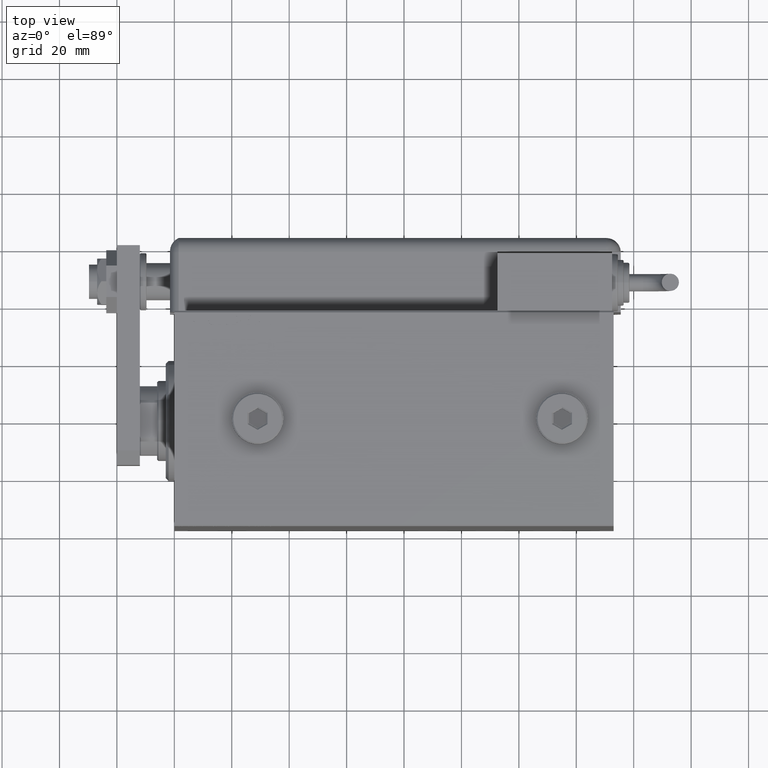
[diagram: clean part render]
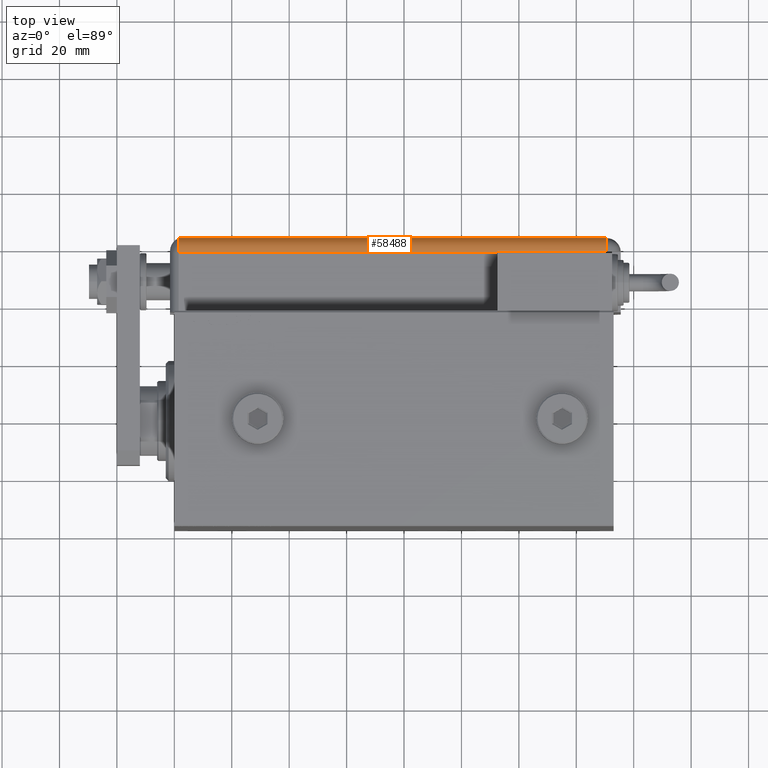
[diagram: same view with one face highlighted and labeled with its STEP entity id]
A machine part, top view. The second image highlights one B-rep face of the part: STEP entity #58488.
In plain terms, the highlighted cylindrical surface (edge-blend (fillet) strip) has radius 5 mm, axis along (1, -0, -0).
Its self-contained STEP definition (entity closure, byte-faithful):
#403 = VERTEX_POINT ( 'NONE', #1521 ) ;
#1090 = VERTEX_POINT ( 'NONE', #43693 ) ;
#1216 = DIRECTION ( 'NONE',  ( -0.000000000000000000, 0.000000000000000000, -1.000000000000000000 ) ) ;
#1521 = CARTESIAN_POINT ( 'NONE',  ( 28.99999999999999645, 20.79999999999998295, 154.0000000000000000 ) ) ;
#2459 = ORIENTED_EDGE ( 'NONE', *, *, #5557, .F. ) ;
#2747 = VECTOR ( 'NONE', #43484, 1000.000000000000000 ) ;
#2939 = ORIENTED_EDGE ( 'NONE', *, *, #25482, .F. ) ;
#3342 = EDGE_CURVE ( 'NONE', #403, #4589, #45518, .T. ) ;
#4589 = VERTEX_POINT ( 'NONE', #40560 ) ;
#5236 = DIRECTION ( 'NONE',  ( 1.000000000000000000, -6.383782391594648845E-14, 0.000000000000000000 ) ) ;
#5557 = EDGE_CURVE ( 'NONE', #1090, #403, #60716, .T. ) ;
#6121 = VECTOR ( 'NONE', #37228, 1000.000000000000000 ) ;
#11610 = DIRECTION ( 'NONE',  ( -0.000000000000000000, -0.000000000000000000, 1.000000000000000000 ) ) ;
#13925 = VERTEX_POINT ( 'NONE', #41418 ) ;
#15178 = CARTESIAN_POINT ( 'NONE',  ( 28.99599839871871154, 21.00000000000000000, 5.000000000000004441 ) ) ;
#15724 = CYLINDRICAL_SURFACE ( 'NONE', #56641, 5.000000000000000888 ) ;
#17479 = CARTESIAN_POINT ( 'NONE',  ( 28.99599839871871154, 20.99999999999997868, 154.0000000000000000 ) ) ;
#17503 = ORIENTED_EDGE ( 'NONE', *, *, #3342, .F. ) ;
#18379 = CARTESIAN_POINT ( 'NONE',  ( 28.99999999999999645, 20.79999999999998295, 154.0000000000000000 ) ) ;
#20070 = ORIENTED_EDGE ( 'NONE', *, *, #55667, .T. ) ;
#20256 = CARTESIAN_POINT ( 'NONE',  ( 23.99999999999999289, 20.79999999999998295, 5.000000000000004441 ) ) ;
#20332 = VERTEX_POINT ( 'NONE', #34327 ) ;
#20682 = VECTOR ( 'NONE', #30763, 1000.000000000000000 ) ;
#23757 = DIRECTION ( 'NONE',  ( 0.000000000000000000, 0.000000000000000000, -1.000000000000000000 ) ) ;
#24069 = CIRCLE ( 'NONE', #49769, 5.000000000000000888 ) ;
#25482 = EDGE_CURVE ( 'NONE', #4589, #13925, #49040, .T. ) ;
#25490 = DIRECTION ( 'NONE',  ( -1.000000000000000000, 0.000000000000000000, 0.000000000000000000 ) ) ;
#26973 = EDGE_LOOP ( 'NONE', ( #36027, #56125, #20070, #2939, #17503, #2459 ) ) ;
#29012 = DIRECTION ( 'NONE',  ( -1.000000000000000000, 0.000000000000000000, 0.000000000000000000 ) ) ;
#30173 = CARTESIAN_POINT ( 'NONE',  ( 23.99999999999999289, 25.79999999999998295, 154.0000000000000000 ) ) ;
#30763 = DIRECTION ( 'NONE',  ( -0.000000000000000000, -0.000000000000000000, 1.000000000000000000 ) ) ;
#33068 = EDGE_CURVE ( 'NONE', #41467, #20332, #35402, .T. ) ;
#34265 = FACE_OUTER_BOUND ( 'NONE', #26973, .T. ) ;
#34327 = CARTESIAN_POINT ( 'NONE',  ( 28.99599839871871154, 20.99999999999999289, 43.00000000000000000 ) ) ;
#34650 = AXIS2_PLACEMENT_3D ( 'NONE', #53467, #36364, #58102 ) ;
#35402 = LINE ( 'NONE', #17479, #20682 ) ;
#36027 = ORIENTED_EDGE ( 'NONE', *, *, #56755, .F. ) ;
#36364 = DIRECTION ( 'NONE',  ( -0.000000000000000000, -0.000000000000000000, 1.000000000000000000 ) ) ;
#37228 = DIRECTION ( 'NONE',  ( -0.000000000000000000, -0.000000000000000000, 1.000000000000000000 ) ) ;
#38903 = CARTESIAN_POINT ( 'NONE',  ( 23.99999999999999289, 20.79999999999998295, 154.0000000000000000 ) ) ;
#40560 = CARTESIAN_POINT ( 'NONE',  ( 23.99999999999999289, 25.79999999999998295, 154.0000000000000000 ) ) ;
#41418 = CARTESIAN_POINT ( 'NONE',  ( 23.99999999999999289, 25.79999999999998295, 5.000000000000004441 ) ) ;
#41467 = VERTEX_POINT ( 'NONE', #15178 ) ;
#43484 = DIRECTION ( 'NONE',  ( 0.000000000000000000, 0.000000000000000000, -1.000000000000000000 ) ) ;
#43693 = CARTESIAN_POINT ( 'NONE',  ( 28.99999999999999645, 20.79999999999998295, 43.00000000000000000 ) ) ;
#45518 = CIRCLE ( 'NONE', #34650, 5.000000000000000888 ) ;
#48803 = CIRCLE ( 'NONE', #52758, 5.000000000000000888 ) ;
#49040 = LINE ( 'NONE', #30173, #2747 ) ;
#49769 = AXIS2_PLACEMENT_3D ( 'NONE', #20256, #11610, #25490 ) ;
#52758 = AXIS2_PLACEMENT_3D ( 'NONE', #58059, #1216, #5236 ) ;
#53467 = CARTESIAN_POINT ( 'NONE',  ( 23.99999999999999289, 20.79999999999998295, 154.0000000000000000 ) ) ;
#55667 = EDGE_CURVE ( 'NONE', #41467, #13925, #24069, .T. ) ;
#56125 = ORIENTED_EDGE ( 'NONE', *, *, #33068, .F. ) ;
#56641 = AXIS2_PLACEMENT_3D ( 'NONE', #38903, #23757, #29012 ) ;
#56755 = EDGE_CURVE ( 'NONE', #20332, #1090, #48803, .T. ) ;
#58059 = CARTESIAN_POINT ( 'NONE',  ( 23.99999999999999289, 20.79999999999998295, 43.00000000000000000 ) ) ;
#58102 = DIRECTION ( 'NONE',  ( -1.000000000000000000, 0.000000000000000000, 0.000000000000000000 ) ) ;
#58488 = ADVANCED_FACE ( 'NONE', ( #34265 ), #15724, .T. ) ;
#60716 = LINE ( 'NONE', #18379, #6121 ) ;